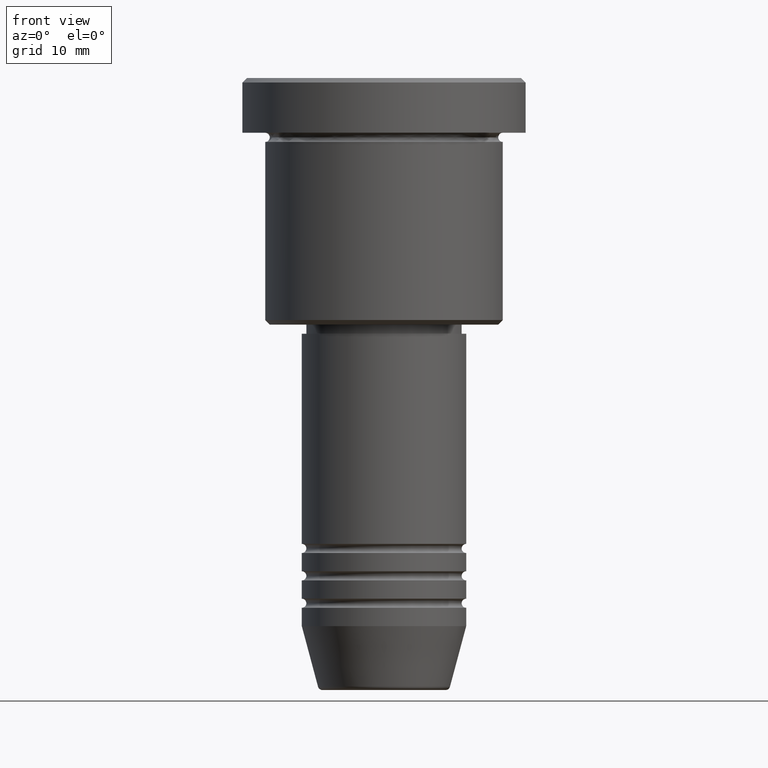
[diagram: clean part render]
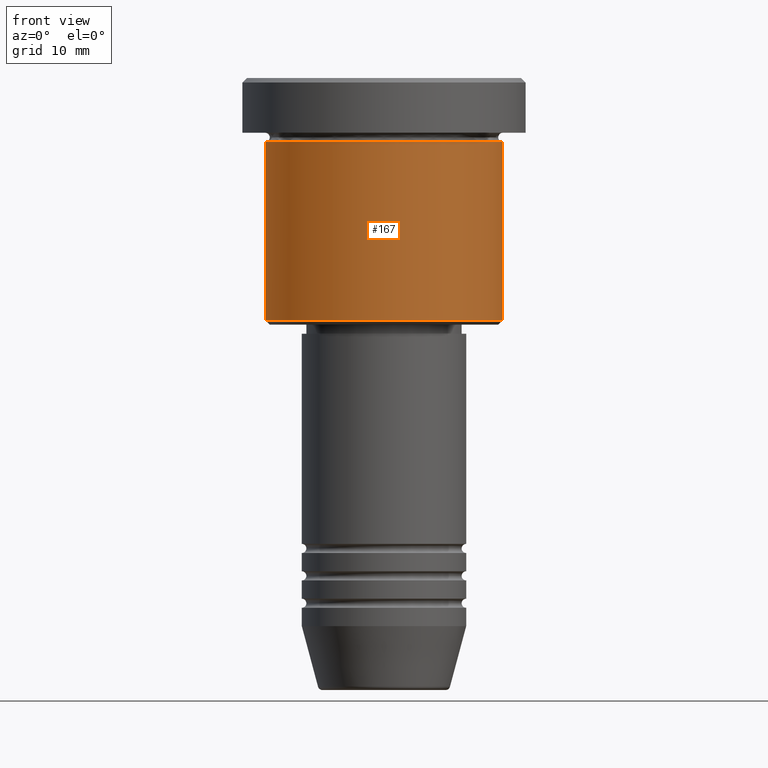
[diagram: same view with one face highlighted and labeled with its STEP entity id]
A machine part, front view. The second image highlights one B-rep face of the part: STEP entity #167.
In plain terms, the highlighted cylindrical surface (partial cylindrical patch) has radius 13 mm, axis along (-0, -0, 1).
Its self-contained STEP definition (entity closure, byte-faithful):
#47 = CARTESIAN_POINT ( 'NONE',  ( 13.00000000000000000, 0.000000000000000000, -26.49999999999999645 ) ) ;
#49 = DIRECTION ( 'NONE',  ( -0.000000000000000000, -0.000000000000000000, 1.000000000000000000 ) ) ;
#64 = DIRECTION ( 'NONE',  ( -1.000000000000000000, 0.000000000000000000, 0.000000000000000000 ) ) ;
#72 = VERTEX_POINT ( 'NONE', #294 ) ;
#132 = VECTOR ( 'NONE', #49, 1000.000000000000000 ) ;
#145 = CARTESIAN_POINT ( 'NONE',  ( 0.000000000000000000, 0.000000000000000000, -26.49999999999999645 ) ) ;
#167 = ADVANCED_FACE ( 'NONE', ( #782 ), #966, .T. ) ;
#206 = AXIS2_PLACEMENT_3D ( 'NONE', #145, #495, #64 ) ;
#226 = ORIENTED_EDGE ( 'NONE', *, *, #1119, .T. ) ;
#237 = CARTESIAN_POINT ( 'NONE',  ( 0.000000000000000000, 0.000000000000000000, -6.999999999999995559 ) ) ;
#250 = CARTESIAN_POINT ( 'NONE',  ( -13.00000000000000000, 1.592040838891559095E-15, -6.999999999999995559 ) ) ;
#261 = CIRCLE ( 'NONE', #548, 13.00000000000000000 ) ;
#282 = ORIENTED_EDGE ( 'NONE', *, *, #683, .F. ) ;
#294 = CARTESIAN_POINT ( 'NONE',  ( -13.00000000000000000, 1.592040838891559095E-15, -26.49999999999999645 ) ) ;
#304 = CARTESIAN_POINT ( 'NONE',  ( 0.000000000000000000, 0.000000000000000000, 0.000000000000000000 ) ) ;
#310 = DIRECTION ( 'NONE',  ( -0.000000000000000000, -0.000000000000000000, 1.000000000000000000 ) ) ;
#323 = ORIENTED_EDGE ( 'NONE', *, *, #774, .F. ) ;
#405 = LINE ( 'NONE', #773, #132 ) ;
#495 = DIRECTION ( 'NONE',  ( -0.000000000000000000, -0.000000000000000000, 1.000000000000000000 ) ) ;
#507 = EDGE_LOOP ( 'NONE', ( #282, #226, #544, #323 ) ) ;
#535 = VERTEX_POINT ( 'NONE', #686 ) ;
#544 = ORIENTED_EDGE ( 'NONE', *, *, #1102, .T. ) ;
#548 = AXIS2_PLACEMENT_3D ( 'NONE', #237, #310, #693 ) ;
#584 = VERTEX_POINT ( 'NONE', #47 ) ;
#616 = DIRECTION ( 'NONE',  ( -0.000000000000000000, -0.000000000000000000, 1.000000000000000000 ) ) ;
#637 = CARTESIAN_POINT ( 'NONE',  ( -13.00000000000000000, 1.592040838891559095E-15, 0.000000000000000000 ) ) ;
#677 = DIRECTION ( 'NONE',  ( -0.000000000000000000, -0.000000000000000000, 1.000000000000000000 ) ) ;
#683 = EDGE_CURVE ( 'NONE', #72, #826, #1060, .T. ) ;
#686 = CARTESIAN_POINT ( 'NONE',  ( 13.00000000000000000, 0.000000000000000000, -6.999999999999995559 ) ) ;
#693 = DIRECTION ( 'NONE',  ( 1.000000000000000000, 0.000000000000000000, 0.000000000000000000 ) ) ;
#773 = CARTESIAN_POINT ( 'NONE',  ( 13.00000000000000000, 0.000000000000000000, 0.000000000000000000 ) ) ;
#774 = EDGE_CURVE ( 'NONE', #826, #535, #261, .T. ) ;
#779 = VECTOR ( 'NONE', #616, 1000.000000000000000 ) ;
#782 = FACE_OUTER_BOUND ( 'NONE', #507, .T. ) ;
#826 = VERTEX_POINT ( 'NONE', #250 ) ;
#966 = CYLINDRICAL_SURFACE ( 'NONE', #1182, 13.00000000000000000 ) ;
#1060 = LINE ( 'NONE', #637, #779 ) ;
#1065 = CIRCLE ( 'NONE', #206, 13.00000000000000000 ) ;
#1102 = EDGE_CURVE ( 'NONE', #584, #535, #405, .T. ) ;
#1119 = EDGE_CURVE ( 'NONE', #72, #584, #1065, .T. ) ;
#1153 = DIRECTION ( 'NONE',  ( 1.000000000000000000, 0.000000000000000000, 0.000000000000000000 ) ) ;
#1182 = AXIS2_PLACEMENT_3D ( 'NONE', #304, #677, #1153 ) ;